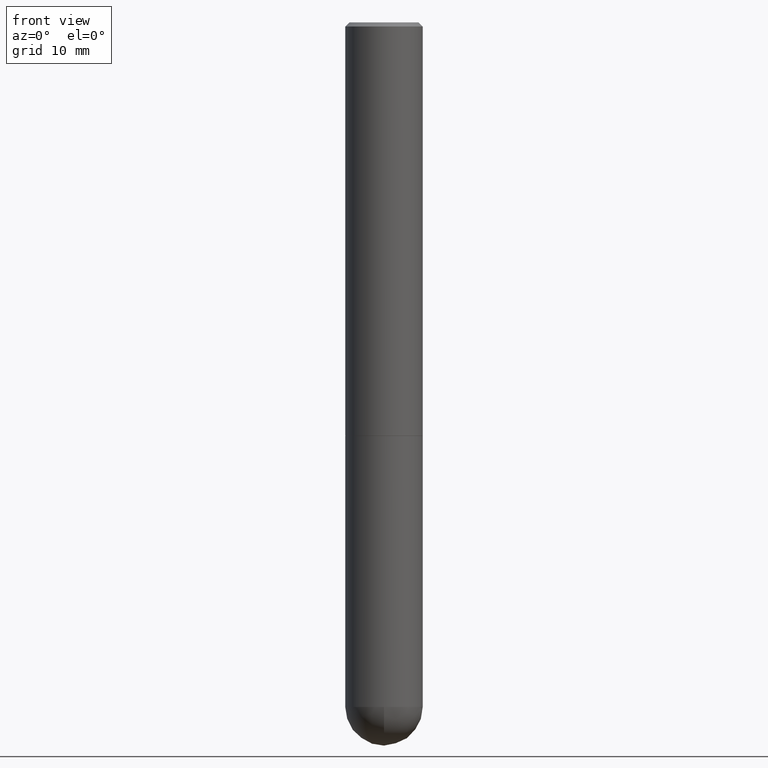
[diagram: clean part render]
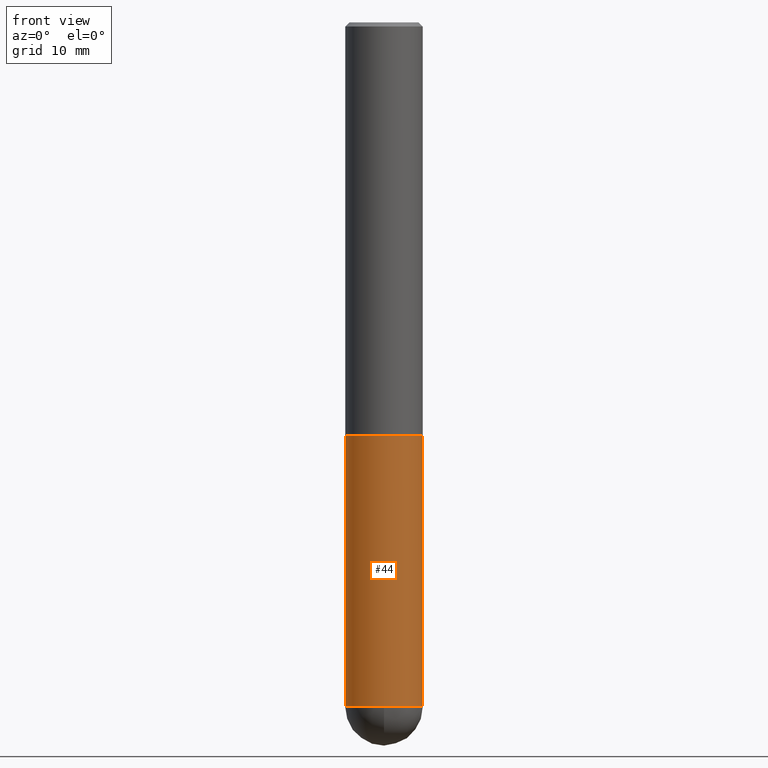
[diagram: same view with one face highlighted and labeled with its STEP entity id]
A machine part, front view. The second image highlights one B-rep face of the part: STEP entity #44.
In plain terms, the highlighted cylindrical surface (partial cylindrical patch) has radius 4.7625 mm, axis along (-0, 0, 1).
Its self-contained STEP definition (entity closure, byte-faithful):
#3 = CARTESIAN_POINT ( 'NONE',  ( 0.1875000000000000278, -8.292268179752465385E-15, -1.999999999999999778 ) ) ;
#4 = AXIS2_PLACEMENT_3D ( 'NONE', #218, #41, #311 ) ;
#15 = CARTESIAN_POINT ( 'NONE',  ( -0.1874999999999999722, 1.332267629550187651E-15, -9.223003294227946589E-30 ) ) ;
#16 = EDGE_CURVE ( 'NONE', #151, #279, #216, .T. ) ;
#20 = ORIENTED_EDGE ( 'NONE', *, *, #378, .F. ) ;
#36 = CARTESIAN_POINT ( 'NONE',  ( -0.1875000000000000278, -7.941979676751916286E-15, -1.999999999999999778 ) ) ;
#41 = DIRECTION ( 'NONE',  ( -2.445468806185136597E-29, 3.491481338843145583E-15, 1.000000000000000000 ) ) ;
#44 = ADVANCED_FACE ( 'NONE', ( #245 ), #184, .T. ) ;
#46 = CIRCLE ( 'NONE', #160, 0.1874999999999999722 ) ;
#67 = CARTESIAN_POINT ( 'NONE',  ( 8.100615420488263856E-29, -1.156553193491791947E-14, -3.312499999999999556 ) ) ;
#75 = EDGE_CURVE ( 'NONE', #214, #86, #46, .T. ) ;
#79 = AXIS2_PLACEMENT_3D ( 'NONE', #261, #173, #325 ) ;
#86 = VERTEX_POINT ( 'NONE', #259 ) ;
#95 = DIRECTION ( 'NONE',  ( -2.445468806185136597E-29, 3.491481338843145583E-15, 1.000000000000000000 ) ) ;
#102 = AXIS2_PLACEMENT_3D ( 'NONE', #394, #95, #383 ) ;
#141 = CARTESIAN_POINT ( 'NONE',  ( -1.332267629550109160E-15, -0.1875000000000119349, -3.312499999999999112 ) ) ;
#150 = DIRECTION ( 'NONE',  ( -2.445468806185136877E-29, 3.491481338843145188E-15, 1.000000000000000000 ) ) ;
#151 = VERTEX_POINT ( 'NONE', #36 ) ;
#153 = EDGE_CURVE ( 'NONE', #86, #279, #327, .T. ) ;
#160 = AXIS2_PLACEMENT_3D ( 'NONE', #67, #321, #230 ) ;
#163 = VERTEX_POINT ( 'NONE', #263 ) ;
#173 = DIRECTION ( 'NONE',  ( -2.445468806185136597E-29, 3.491481338843145583E-15, 1.000000000000000000 ) ) ;
#178 = VECTOR ( 'NONE', #294, 39.37007874015748143 ) ;
#184 = CYLINDRICAL_SURFACE ( 'NONE', #4, 0.1874999999999999722 ) ;
#193 = ORIENTED_EDGE ( 'NONE', *, *, #75, .T. ) ;
#195 = ORIENTED_EDGE ( 'NONE', *, *, #393, .T. ) ;
#214 = VERTEX_POINT ( 'NONE', #141 ) ;
#216 = CIRCLE ( 'NONE', #79, 0.1875000000000000278 ) ;
#218 = CARTESIAN_POINT ( 'NONE',  ( 0.000000000000000000, 0.000000000000000000, 0.000000000000000000 ) ) ;
#224 = CIRCLE ( 'NONE', #102, 0.1874999999999999722 ) ;
#227 = ORIENTED_EDGE ( 'NONE', *, *, #153, .T. ) ;
#230 = DIRECTION ( 'NONE',  ( 1.000000000000000000, -6.982962677686263555E-15, 0.000000000000000000 ) ) ;
#235 = CARTESIAN_POINT ( 'NONE',  ( 0.1874999999999999722, -1.309305502066174811E-15, 9.142831454617378210E-30 ) ) ;
#245 = FACE_OUTER_BOUND ( 'NONE', #388, .T. ) ;
#252 = LINE ( 'NONE', #15, #369 ) ;
#254 = ORIENTED_EDGE ( 'NONE', *, *, #16, .F. ) ;
#259 = CARTESIAN_POINT ( 'NONE',  ( 0.1874999999999999722, -1.058355280836828072E-14, -3.312499999999999556 ) ) ;
#261 = CARTESIAN_POINT ( 'NONE',  ( 4.890937612370272633E-29, -6.982962677686290376E-15, -1.999999999999999778 ) ) ;
#263 = CARTESIAN_POINT ( 'NONE',  ( -0.1874999999999999722, -7.941979676751917864E-15, -3.312499999999999556 ) ) ;
#279 = VERTEX_POINT ( 'NONE', #3 ) ;
#294 = DIRECTION ( 'NONE',  ( -2.445468806185136877E-29, 3.491481338843145188E-15, 1.000000000000000000 ) ) ;
#311 = DIRECTION ( 'NONE',  ( 1.000000000000000000, -6.982962677686266711E-15, 4.876176775795935793E-29 ) ) ;
#321 = DIRECTION ( 'NONE',  ( -2.445468806185136597E-29, 3.491481338843145583E-15, 1.000000000000000000 ) ) ;
#325 = DIRECTION ( 'NONE',  ( 1.000000000000000000, -6.982962677686266711E-15, 0.000000000000000000 ) ) ;
#327 = LINE ( 'NONE', #235, #178 ) ;
#369 = VECTOR ( 'NONE', #150, 39.37007874015748143 ) ;
#378 = EDGE_CURVE ( 'NONE', #163, #151, #252, .T. ) ;
#383 = DIRECTION ( 'NONE',  ( 1.000000000000000000, -6.982962677686263555E-15, 0.000000000000000000 ) ) ;
#388 = EDGE_LOOP ( 'NONE', ( #20, #195, #193, #227, #254 ) ) ;
#393 = EDGE_CURVE ( 'NONE', #163, #214, #224, .T. ) ;
#394 = CARTESIAN_POINT ( 'NONE',  ( 8.100615420488263856E-29, -1.156553193491791947E-14, -3.312499999999999556 ) ) ;